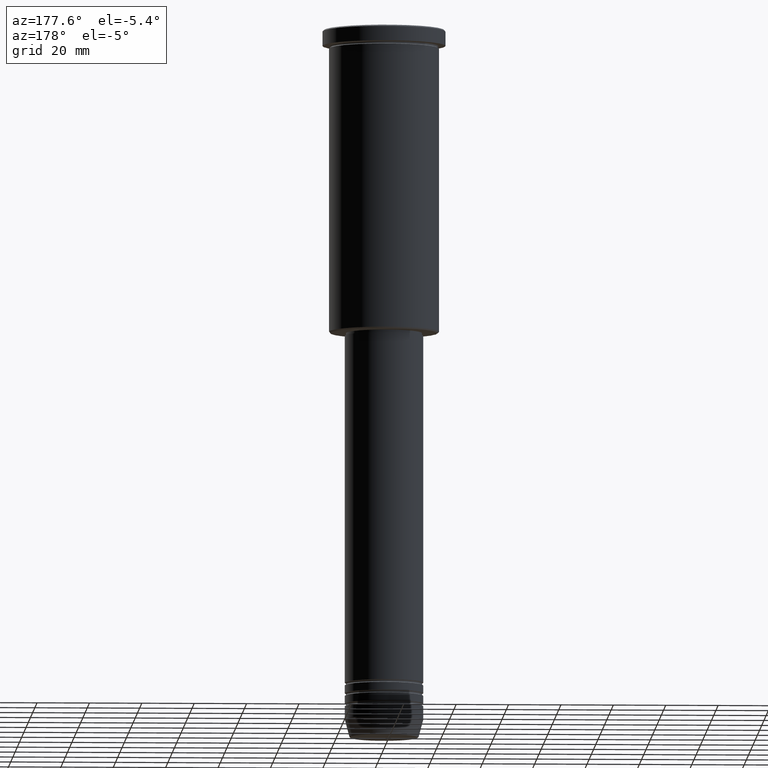
[diagram: clean part render]
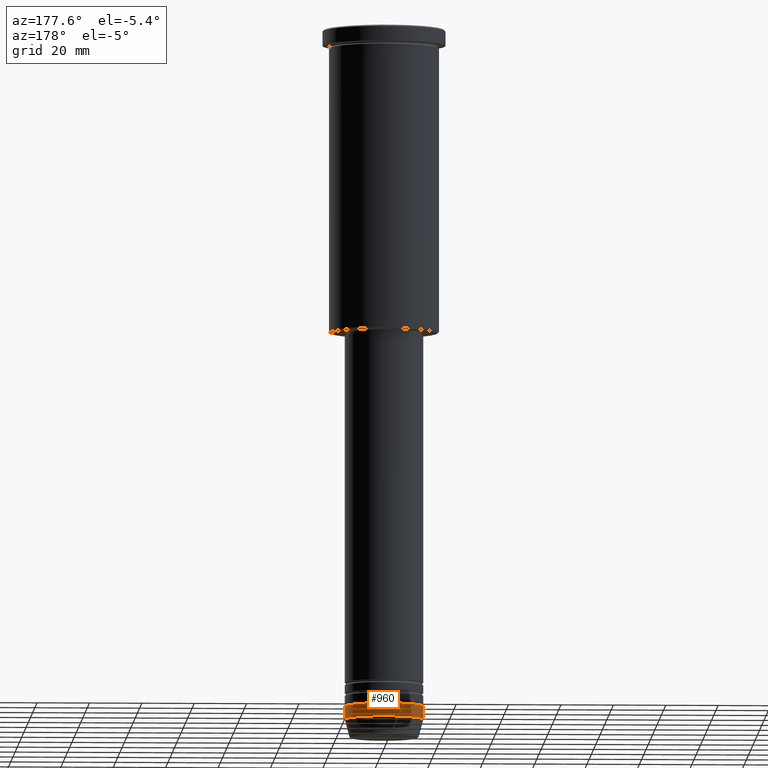
[diagram: same view with one face highlighted and labeled with its STEP entity id]
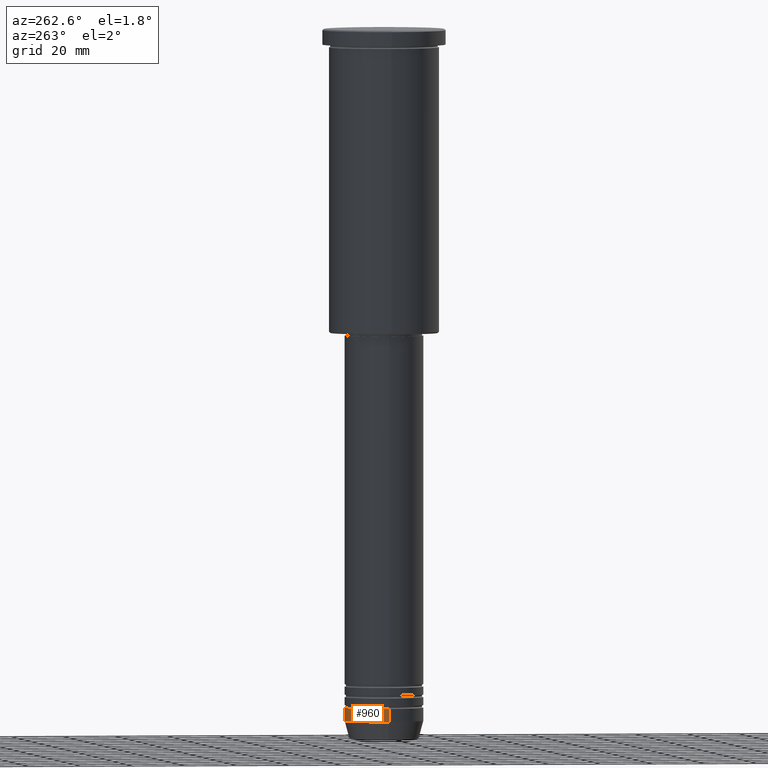
[diagram: same view with one face highlighted and labeled with its STEP entity id]
A machine part, auxiliary view. The second image highlights one B-rep face of the part: STEP entity #960.
A second angle (auxiliary view) of the same face is appended — the face is thin or edge-on in the first view.
In plain terms, the highlighted cylindrical surface (partial cylindrical patch) has radius 15 mm, axis along (-0, -0, 1).
Its self-contained STEP definition (entity closure, byte-faithful):
#2 = EDGE_CURVE ( 'NONE', #393, #334, #492, .T. ) ;
#24 = EDGE_LOOP ( 'NONE', ( #598, #1122, #473, #180 ) ) ;
#32 = CARTESIAN_POINT ( 'NONE',  ( -15.00000000000000000, 1.836970198721029589E-15, -259.0000000000000000 ) ) ;
#64 = AXIS2_PLACEMENT_3D ( 'NONE', #275, #1022, #474 ) ;
#65 = VERTEX_POINT ( 'NONE', #889 ) ;
#124 = CARTESIAN_POINT ( 'NONE',  ( 0.000000000000000000, 0.000000000000000000, -259.0000000000000000 ) ) ;
#180 = ORIENTED_EDGE ( 'NONE', *, *, #614, .F. ) ;
#239 = CARTESIAN_POINT ( 'NONE',  ( 0.000000000000000000, 0.000000000000000000, -264.0000000000000000 ) ) ;
#275 = CARTESIAN_POINT ( 'NONE',  ( 0.000000000000000000, 0.000000000000000000, 0.000000000000000000 ) ) ;
#293 = FACE_OUTER_BOUND ( 'NONE', #24, .T. ) ;
#334 = VERTEX_POINT ( 'NONE', #32 ) ;
#393 = VERTEX_POINT ( 'NONE', #1059 ) ;
#405 = DIRECTION ( 'NONE',  ( 1.000000000000000000, 0.000000000000000000, 0.000000000000000000 ) ) ;
#421 = AXIS2_PLACEMENT_3D ( 'NONE', #239, #502, #405 ) ;
#423 = VERTEX_POINT ( 'NONE', #799 ) ;
#468 = EDGE_CURVE ( 'NONE', #65, #334, #713, .T. ) ;
#473 = ORIENTED_EDGE ( 'NONE', *, *, #2, .F. ) ;
#474 = DIRECTION ( 'NONE',  ( 1.000000000000000000, 0.000000000000000000, 0.000000000000000000 ) ) ;
#492 = CIRCLE ( 'NONE', #914, 15.00000000000000000 ) ;
#502 = DIRECTION ( 'NONE',  ( -0.000000000000000000, -0.000000000000000000, 1.000000000000000000 ) ) ;
#542 = CARTESIAN_POINT ( 'NONE',  ( -15.00000000000000000, 1.836970198721029589E-15, 0.000000000000000000 ) ) ;
#598 = ORIENTED_EDGE ( 'NONE', *, *, #1068, .T. ) ;
#614 = EDGE_CURVE ( 'NONE', #423, #393, #955, .T. ) ;
#680 = DIRECTION ( 'NONE',  ( -0.000000000000000000, -0.000000000000000000, 1.000000000000000000 ) ) ;
#707 = VECTOR ( 'NONE', #680, 1000.000000000000000 ) ;
#708 = DIRECTION ( 'NONE',  ( -0.000000000000000000, -0.000000000000000000, 1.000000000000000000 ) ) ;
#713 = LINE ( 'NONE', #542, #1126 ) ;
#746 = CYLINDRICAL_SURFACE ( 'NONE', #64, 15.00000000000000000 ) ;
#770 = CARTESIAN_POINT ( 'NONE',  ( 15.00000000000000000, 0.000000000000000000, 0.000000000000000000 ) ) ;
#799 = CARTESIAN_POINT ( 'NONE',  ( 15.00000000000000000, 0.000000000000000000, -264.0000000000000000 ) ) ;
#889 = CARTESIAN_POINT ( 'NONE',  ( -15.00000000000000000, 1.836970198721029589E-15, -264.0000000000000000 ) ) ;
#914 = AXIS2_PLACEMENT_3D ( 'NONE', #124, #708, #940 ) ;
#940 = DIRECTION ( 'NONE',  ( 1.000000000000000000, 0.000000000000000000, 0.000000000000000000 ) ) ;
#955 = LINE ( 'NONE', #770, #707 ) ;
#960 = ADVANCED_FACE ( 'NONE', ( #293 ), #746, .T. ) ;
#1022 = DIRECTION ( 'NONE',  ( -0.000000000000000000, -0.000000000000000000, 1.000000000000000000 ) ) ;
#1059 = CARTESIAN_POINT ( 'NONE',  ( 15.00000000000000000, 0.000000000000000000, -259.0000000000000000 ) ) ;
#1068 = EDGE_CURVE ( 'NONE', #423, #65, #1146, .T. ) ;
#1073 = DIRECTION ( 'NONE',  ( -0.000000000000000000, -0.000000000000000000, 1.000000000000000000 ) ) ;
#1122 = ORIENTED_EDGE ( 'NONE', *, *, #468, .T. ) ;
#1126 = VECTOR ( 'NONE', #1073, 1000.000000000000000 ) ;
#1146 = CIRCLE ( 'NONE', #421, 15.00000000000000000 ) ;